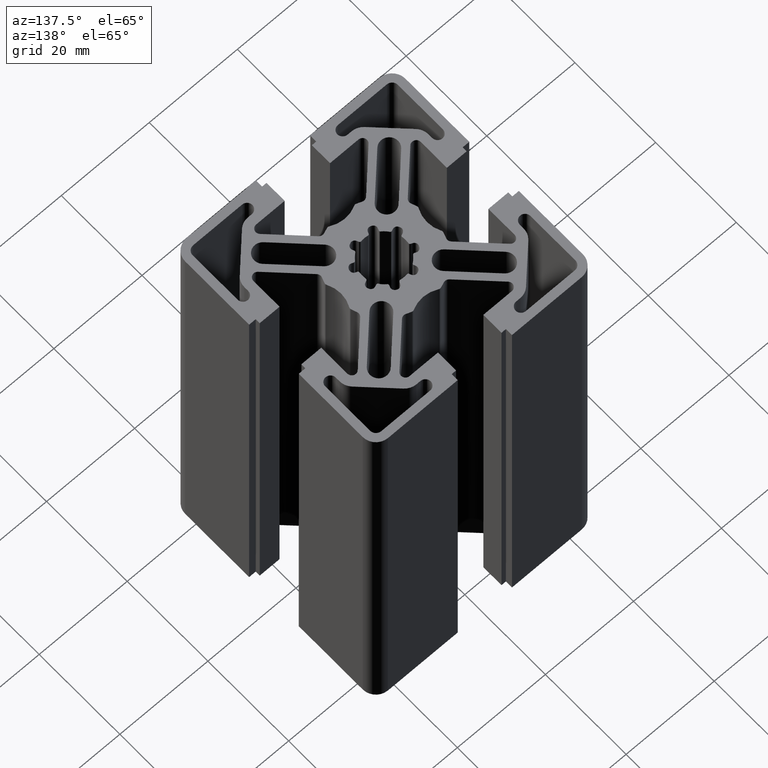
[diagram: clean part render]
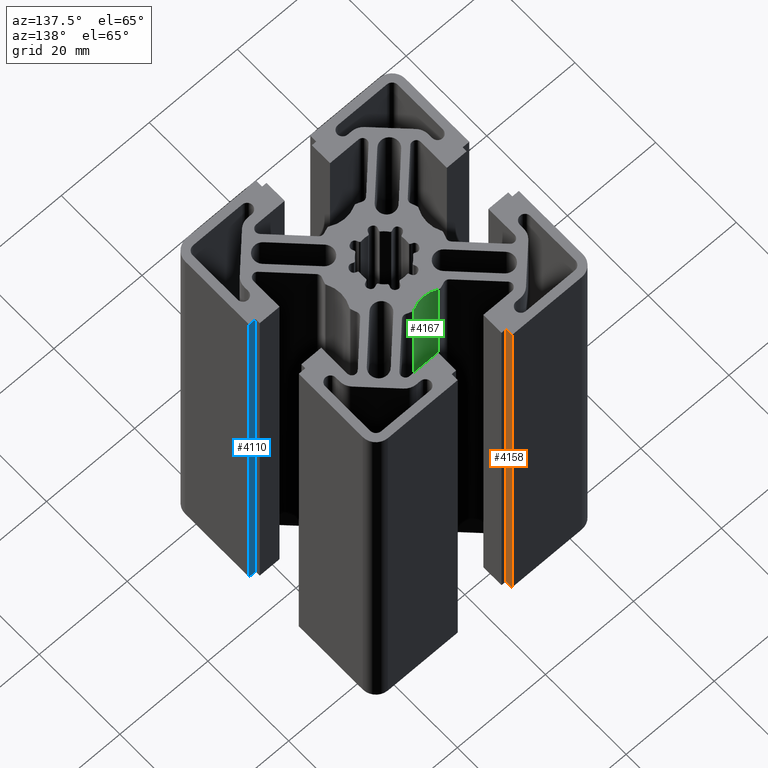
[diagram: same view with three faces highlighted in distinct colors, each labeled with its STEP entity id]
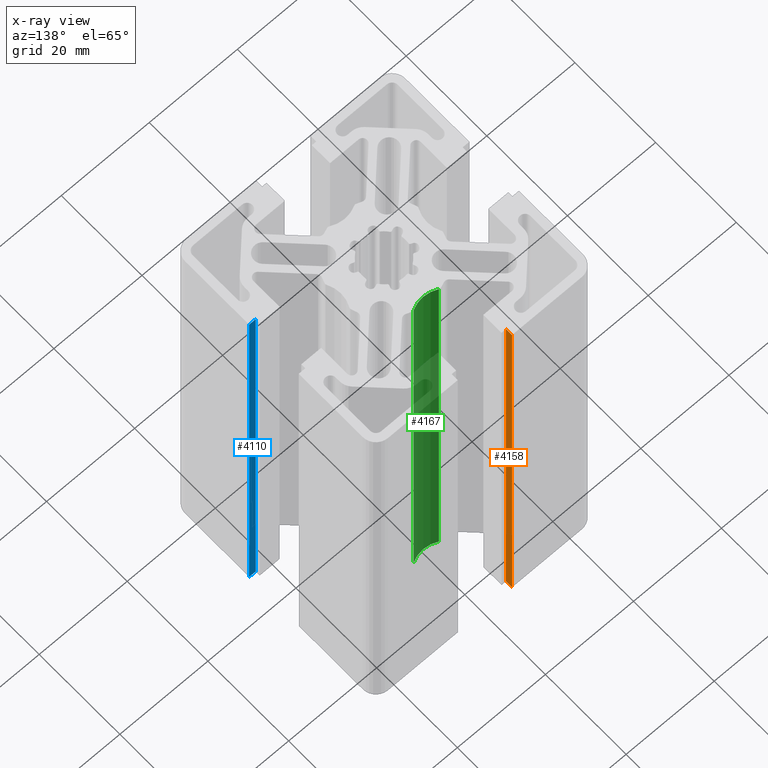
[diagram: x-ray of the same camera — body ghosted, the three highlighted faces saturated]
A machine part, auxiliary view with three faces highlighted in distinct colors.
The next image is the same camera in x-ray (body ghosted, the three faces saturated) — at least one of them is partly hidden behind the body in this view.
Their STEP definitions:

[orange] entity #4158 — the highlighted planar face has unit normal (1, 0, 0).
#108=PLANE('',#4566);
#300=FACE_OUTER_BOUND('',#510,.T.);
#510=EDGE_LOOP('',(#3313,#3314,#3315,#3316));
#888=LINE('',#6958,#1280);
#889=LINE('',#6961,#1281);
#890=LINE('',#6963,#1282);
#891=LINE('',#6964,#1283);
#1280=VECTOR('',#5702,100.);
#1281=VECTOR('',#5705,1.49999999999999);
#1282=VECTOR('',#5706,1.49999999999999);
#1283=VECTOR('',#5707,100.);
#1927=VERTEX_POINT('',#6954);
#1928=VERTEX_POINT('',#6956);
#1929=VERTEX_POINT('',#6960);
#1930=VERTEX_POINT('',#6962);
#2516=EDGE_CURVE('',#1927,#1928,#888,.T.);
#2517=EDGE_CURVE('',#1929,#1927,#889,.T.);
#2518=EDGE_CURVE('',#1930,#1928,#890,.T.);
#2519=EDGE_CURVE('',#1929,#1930,#891,.T.);
#3313=ORIENTED_EDGE('',*,*,#2517,.T.);
#3314=ORIENTED_EDGE('',*,*,#2516,.T.);
#3315=ORIENTED_EDGE('',*,*,#2518,.F.);
#3316=ORIENTED_EDGE('',*,*,#2519,.F.);
#4158=ADVANCED_FACE('',(#300),#108,.T.);
#4566=AXIS2_PLACEMENT_3D('',#6959,#5703,#5704);
#5702=DIRECTION('',(0.,0.,1.));
#5703=DIRECTION('center_axis',(1.,0.,0.));
#5704=DIRECTION('ref_axis',(0.,1.,0.));
#5705=DIRECTION('',(0.,1.,0.));
#5706=DIRECTION('',(0.,1.,0.));
#5707=DIRECTION('',(0.,0.,1.));
#6954=CARTESIAN_POINT('',(-6.15000000000003,25.,0.));
#6956=CARTESIAN_POINT('',(-6.15000000000003,25.,100.));
#6958=CARTESIAN_POINT('',(-6.15000000000003,25.,0.));
#6959=CARTESIAN_POINT('Origin',(-6.15000000000003,23.5,0.));
#6960=CARTESIAN_POINT('',(-6.15000000000003,23.5,0.));
#6961=CARTESIAN_POINT('',(-6.15000000000003,23.5,0.));
#6962=CARTESIAN_POINT('',(-6.15000000000003,23.5,100.));
#6963=CARTESIAN_POINT('',(-6.15000000000003,23.5,100.));
#6964=CARTESIAN_POINT('',(-6.15000000000003,23.5,0.));

[blue] entity #4110 — the highlighted planar face has unit normal (-0, 1, 0).
#81=PLANE('',#4476);
#252=FACE_OUTER_BOUND('',#462,.T.);
#462=EDGE_LOOP('',(#3121,#3122,#3123,#3124));
#786=LINE('',#6670,#1178);
#787=LINE('',#6673,#1179);
#788=LINE('',#6675,#1180);
#789=LINE('',#6676,#1181);
#1178=VECTOR('',#5420,100.);
#1179=VECTOR('',#5423,1.49999999999999);
#1180=VECTOR('',#5424,1.49999999999999);
#1181=VECTOR('',#5425,100.);
#1831=VERTEX_POINT('',#6666);
#1832=VERTEX_POINT('',#6668);
#1833=VERTEX_POINT('',#6672);
#1834=VERTEX_POINT('',#6674);
#2372=EDGE_CURVE('',#1831,#1832,#786,.T.);
#2373=EDGE_CURVE('',#1833,#1831,#787,.T.);
#2374=EDGE_CURVE('',#1834,#1832,#788,.T.);
#2375=EDGE_CURVE('',#1833,#1834,#789,.T.);
#3121=ORIENTED_EDGE('',*,*,#2373,.T.);
#3122=ORIENTED_EDGE('',*,*,#2372,.T.);
#3123=ORIENTED_EDGE('',*,*,#2374,.F.);
#3124=ORIENTED_EDGE('',*,*,#2375,.F.);
#4110=ADVANCED_FACE('',(#252),#81,.T.);
#4476=AXIS2_PLACEMENT_3D('',#6671,#5421,#5422);
#5420=DIRECTION('',(0.,0.,1.));
#5421=DIRECTION('center_axis',(-1.18423789293351E-14,1.,0.));
#5422=DIRECTION('ref_axis',(-1.,-1.18127729820117E-14,0.));
#5423=DIRECTION('',(-1.,-1.18423789293351E-14,0.));
#5424=DIRECTION('',(-1.,-1.18423789293351E-14,0.));
#5425=DIRECTION('',(0.,0.,1.));
#6666=CARTESIAN_POINT('',(23.5,-6.15000000000011,0.));
#6668=CARTESIAN_POINT('',(23.5,-6.15000000000011,100.));
#6670=CARTESIAN_POINT('',(23.5,-6.15000000000011,0.));
#6671=CARTESIAN_POINT('Origin',(24.9999999999999,-6.15000000000009,0.));
#6672=CARTESIAN_POINT('',(24.9999999999999,-6.15000000000009,0.));
#6673=CARTESIAN_POINT('',(24.9999999999999,-6.15000000000009,0.));
#6674=CARTESIAN_POINT('',(24.9999999999999,-6.15000000000009,100.));
#6675=CARTESIAN_POINT('',(24.9999999999999,-6.15000000000009,100.));
#6676=CARTESIAN_POINT('',(24.9999999999999,-6.15000000000009,0.));

[green] entity #4167 — the highlighted cylindrical surface (edge-blend (fillet) strip) has radius 6 mm, axis along (0, 0, 1).
#309=FACE_OUTER_BOUND('',#519,.T.);
#519=EDGE_LOOP('',(#3349,#3350,#3351,#3352));
#907=LINE('',#7012,#1299);
#908=LINE('',#7018,#1300);
#1299=VECTOR('',#5755,100.);
#1300=VECTOR('',#5762,100.);
#1553=CIRCLE('',#4584,6.);
#1554=CIRCLE('',#4585,6.);
#1945=VERTEX_POINT('',#7008);
#1946=VERTEX_POINT('',#7010);
#1947=VERTEX_POINT('',#7014);
#1948=VERTEX_POINT('',#7016);
#2543=EDGE_CURVE('',#1945,#1946,#907,.T.);
#2544=EDGE_CURVE('',#1947,#1945,#1553,.T.);
#2545=EDGE_CURVE('',#1948,#1946,#1554,.T.);
#2546=EDGE_CURVE('',#1947,#1948,#908,.T.);
#3349=ORIENTED_EDGE('',*,*,#2544,.T.);
#3350=ORIENTED_EDGE('',*,*,#2543,.T.);
#3351=ORIENTED_EDGE('',*,*,#2545,.F.);
#3352=ORIENTED_EDGE('',*,*,#2546,.F.);
#3971=CYLINDRICAL_SURFACE('',#4583,6.);
#4167=ADVANCED_FACE('',(#309),#3971,.F.);
#4583=AXIS2_PLACEMENT_3D('',#7013,#5756,#5757);
#4584=AXIS2_PLACEMENT_3D('',#7015,#5758,#5759);
#4585=AXIS2_PLACEMENT_3D('',#7017,#5760,#5761);
#5755=DIRECTION('',(0.,0.,1.));
#5756=DIRECTION('center_axis',(0.,0.,1.));
#5757=DIRECTION('ref_axis',(0.476035379864328,0.87942612942613,0.));
#5758=DIRECTION('center_axis',(0.,0.,-1.));
#5759=DIRECTION('ref_axis',(0.476035379864328,0.87942612942613,0.));
#5760=DIRECTION('center_axis',(0.,0.,-1.));
#5761=DIRECTION('ref_axis',(0.476035379864328,0.87942612942613,0.));
#5762=DIRECTION('',(0.,0.,1.));
#7008=CARTESIAN_POINT('',(-2.85621227918597,10.4734432234432,0.));
#7010=CARTESIAN_POINT('',(-2.85621227918597,10.4734432234432,100.));
#7012=CARTESIAN_POINT('',(-2.85621227918597,10.4734432234432,0.));
#7013=CARTESIAN_POINT('Origin',(0.,15.75,0.));
#7014=CARTESIAN_POINT('',(2.85621227917298,10.4734432234362,0.));
#7015=CARTESIAN_POINT('Origin',(0.,15.75,0.));
#7016=CARTESIAN_POINT('',(2.85621227917298,10.4734432234362,100.));
#7017=CARTESIAN_POINT('Origin',(0.,15.75,100.));
#7018=CARTESIAN_POINT('',(2.85621227917298,10.4734432234362,0.));